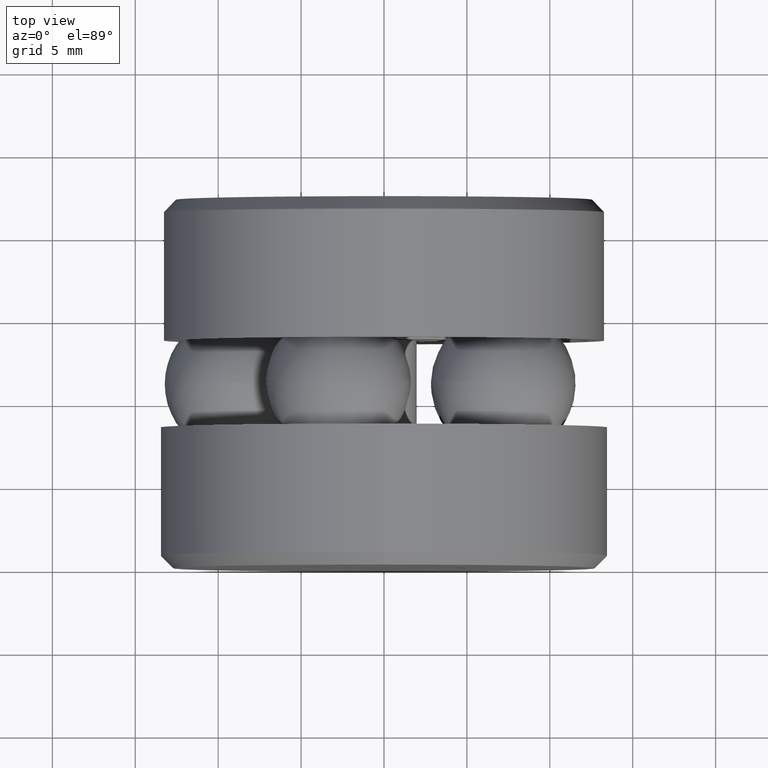
[diagram: clean part render]
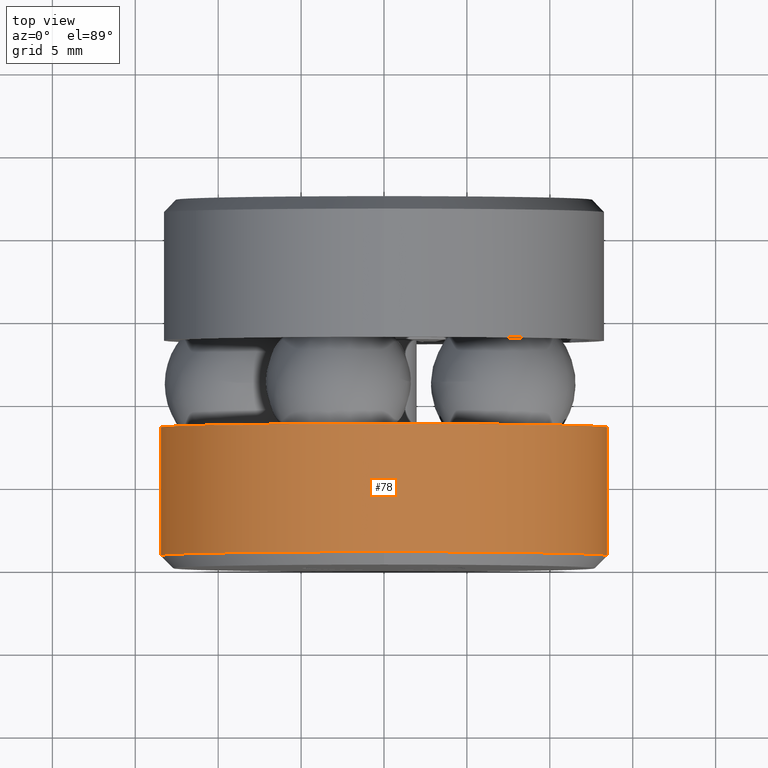
[diagram: same view with one face highlighted and labeled with its STEP entity id]
A machine part, top view. The second image highlights one B-rep face of the part: STEP entity #78.
In plain terms, the highlighted cylindrical surface (bore or boss wall) has radius 13.4937 mm, axis along (-0, 1, -0).
Its self-contained STEP definition (entity closure, byte-faithful):
#24 = ORIENTED_EDGE ( 'NONE', *, *, #139, .F. ) ;
#53 = ORIENTED_EDGE ( 'NONE', *, *, #321, .T. ) ;
#78 = ADVANCED_FACE ( 'NONE', ( #535, #129 ), #455, .T. ) ;
#87 = CARTESIAN_POINT ( 'NONE',  ( 0.0000000000000000000, 0.03000000000000024200, 0.0000000000000000000 ) ) ;
#114 = DIRECTION ( 'NONE',  ( 0.0000000000000000000, 0.0000000000000000000, 1.000000000000000000 ) ) ;
#118 = DIRECTION ( 'NONE',  ( -0.0000000000000000000, 1.000000000000000000, -0.0000000000000000000 ) ) ;
#127 = VERTEX_POINT ( 'NONE', #433 ) ;
#129 = FACE_OUTER_BOUND ( 'NONE', #492, .T. ) ;
#139 = EDGE_CURVE ( 'NONE', #388, #388, #292, .T. ) ;
#159 = EDGE_LOOP ( 'NONE', ( #53 ) ) ;
#165 = AXIS2_PLACEMENT_3D ( 'NONE', #327, #325, #322 ) ;
#237 = AXIS2_PLACEMENT_3D ( 'NONE', #414, #407, #413 ) ;
#292 = CIRCLE ( 'NONE', #165, 0.5312500000000000000 ) ;
#321 = EDGE_CURVE ( 'NONE', #127, #127, #338, .T. ) ;
#322 = DIRECTION ( 'NONE',  ( 0.0000000000000000000, 0.0000000000000000000, 1.000000000000000000 ) ) ;
#325 = DIRECTION ( 'NONE',  ( -0.0000000000000000000, 1.000000000000000000, -0.0000000000000000000 ) ) ;
#327 = CARTESIAN_POINT ( 'NONE',  ( 0.0000000000000000000, 0.3343000000000000400, 0.0000000000000000000 ) ) ;
#338 = CIRCLE ( 'NONE', #449, 0.5312500000000000000 ) ;
#348 = CARTESIAN_POINT ( 'NONE',  ( 0.0000000000000000000, 0.3343000000000000400, 0.5312500000000000000 ) ) ;
#388 = VERTEX_POINT ( 'NONE', #348 ) ;
#407 = DIRECTION ( 'NONE',  ( -0.0000000000000000000, 1.000000000000000000, -0.0000000000000000000 ) ) ;
#413 = DIRECTION ( 'NONE',  ( 0.0000000000000000000, 0.0000000000000000000, 1.000000000000000000 ) ) ;
#414 = CARTESIAN_POINT ( 'NONE',  ( 0.0000000000000000000, 0.0000000000000000000, 0.0000000000000000000 ) ) ;
#433 = CARTESIAN_POINT ( 'NONE',  ( 0.0000000000000000000, 0.03000000000000024200, 0.5312500000000000000 ) ) ;
#449 = AXIS2_PLACEMENT_3D ( 'NONE', #87, #118, #114 ) ;
#455 = CYLINDRICAL_SURFACE ( 'NONE', #237, 0.5312500000000000000 ) ;
#492 = EDGE_LOOP ( 'NONE', ( #24 ) ) ;
#535 = FACE_OUTER_BOUND ( 'NONE', #159, .T. ) ;